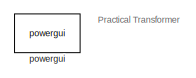
[diagram: root canvas - part 1/4, top left region]
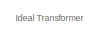
[diagram: root canvas - part 2/4, top center region]
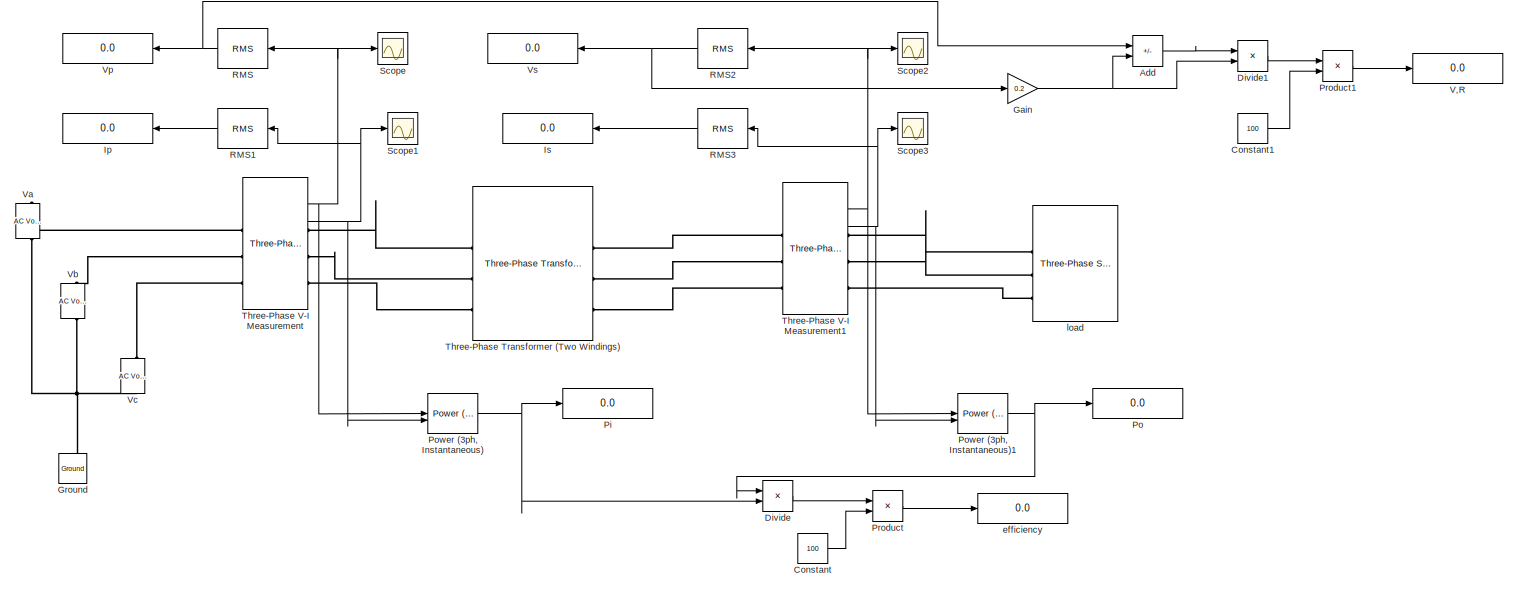
[diagram: root canvas - part 3/4, left side, full height]
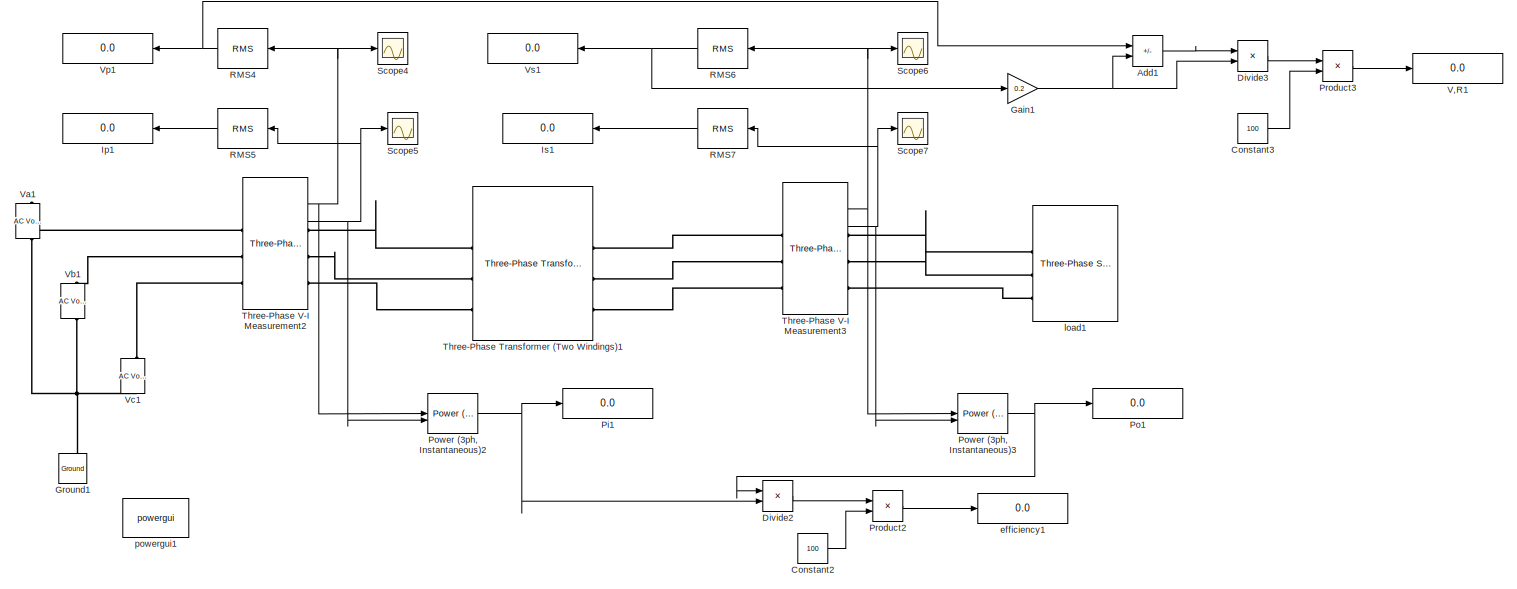
[diagram: root canvas - part 4/4, right side, full height]
MODEL slx_853a9605aea3
KIND model
CONFIG AbsTol = auto
CONFIG EnableMultiTasking = off
CONFIG FixedStep = auto
CONFIG MaxStep = 1e-4
CONFIG MinStep = auto
CONFIG RelTol = 1e-3
CONFIG SampleTimeConstraint = Unconstrained
CONFIG SolverName = ode23tb
CONFIG StartTime = 0.0
CONFIG StopTime = 0.2
BLOCK [Sum] Add
  IconShape = rectangular
  Inputs = +-
BLOCK [Sum] Add1
  IconShape = rectangular
  Inputs = +-
BLOCK [Constant] Constant
  Value = 100
BLOCK [Constant] Constant1
  Value = 100
BLOCK [Constant] Constant2
  Value = 100
BLOCK [Constant] Constant3
  Value = 100
BLOCK [Product] Divide
  Inputs = */
BLOCK [Product] Divide1
  Inputs = */
BLOCK [Product] Divide2
  Inputs = */
BLOCK [Product] Divide3
  Inputs = */
BLOCK [Gain] Gain
  Gain = 0.2
BLOCK [Gain] Gain1
  Gain = 0.2
BLOCK [Reference] Ground  REF=spsGroundLib/Ground
  NameLocation = right
  SourceBlock = spsGroundLib/Ground
  SourceType = Ground
BLOCK [Reference] Ground1  REF=spsGroundLib/Ground
  NameLocation = right
  SourceBlock = spsGroundLib/Ground
  SourceType = Ground
BLOCK [Display] Ip
  Decimation = 1
  NameLocation = top
BLOCK [Display] Ip1
  Decimation = 1
  NameLocation = top
BLOCK [Display] Is
  Decimation = 1
  NameLocation = top
BLOCK [Display] Is1
  Decimation = 1
  NameLocation = top
BLOCK [Display] Pi
  Decimation = 1
BLOCK [Display] Pi1
  Decimation = 1
BLOCK [Display] Po
  Decimation = 1
BLOCK [Display] Po1
  Decimation = 1
BLOCK [Reference] Power (3ph, Instantaneous)  REF=spsPower3phInstantaneousLib/Power
(3ph, Instantaneous)
  SourceBlock = spsPower3phInstantaneousLib/Power\n(3ph, Instantaneous)
  SourceType = Power (3ph, Instantaneous)
BLOCK [Reference] Power (3ph, Instantaneous)1  REF=spsPower3phInstantaneousLib/Power
(3ph, Instantaneous)
  SourceBlock = spsPower3phInstantaneousLib/Power\n(3ph, Instantaneous)
  SourceType = Power (3ph, Instantaneous)
BLOCK [Reference] Power (3ph, Instantaneous)2  REF=spsPower3phInstantaneousLib/Power
(3ph, Instantaneous)
  SourceBlock = spsPower3phInstantaneousLib/Power\n(3ph, Instantaneous)
  SourceType = Power (3ph, Instantaneous)
BLOCK [Reference] Power (3ph, Instantaneous)3  REF=spsPower3phInstantaneousLib/Power
(3ph, Instantaneous)
  SourceBlock = spsPower3phInstantaneousLib/Power\n(3ph, Instantaneous)
  SourceType = Power (3ph, Instantaneous)
BLOCK [Product] Product
BLOCK [Product] Product1
BLOCK [Product] Product2
BLOCK [Product] Product3
BLOCK [Reference] RMS  REF=spsRMSLib/RMS
  NameLocation = top
  SourceBlock = spsRMSLib/RMS
  SourceType = RMS
BLOCK [Reference] RMS1  REF=spsRMSLib/RMS
  NameLocation = top
  SourceBlock = spsRMSLib/RMS
  SourceType = RMS
BLOCK [Reference] RMS2  REF=spsRMSLib/RMS
  NameLocation = top
  SourceBlock = spsRMSLib/RMS
  SourceType = RMS
BLOCK [Reference] RMS3  REF=spsRMSLib/RMS
  NameLocation = top
  SourceBlock = spsRMSLib/RMS
  SourceType = RMS
BLOCK [Reference] RMS4  REF=spsRMSLib/RMS
  NameLocation = top
  SourceBlock = spsRMSLib/RMS
  SourceType = RMS
BLOCK [Reference] RMS5  REF=spsRMSLib/RMS
  NameLocation = top
  SourceBlock = spsRMSLib/RMS
  SourceType = RMS
BLOCK [Reference] RMS6  REF=spsRMSLib/RMS
  NameLocation = top
  SourceBlock = spsRMSLib/RMS
  SourceType = RMS
BLOCK [Reference] RMS7  REF=spsRMSLib/RMS
  NameLocation = top
  SourceBlock = spsRMSLib/RMS
  SourceType = RMS
BLOCK [Scope] Scope
  Floating = off
  NumInputPorts = 1
  ScopeSpecificationString = Simulink.scopes.TimeScopeBlockCfg('CurrentConfiguration', extmgr.ConfigurationSet(extmgr.Configuration('Core','General UI',true),extmgr.Configuration('Core','Source UI',true),extmgr.Configuration('Sources','WiredSimulink',true,'DataLoggingSaveFormat','Array','DataLoggingDecimation','1','DataLoggingDecimateData',true),extmgr.Configuration('Visuals','Time Domain',true,'DisplayPropertyDefaults',struc...<+824ch>
BLOCK [Scope] Scope1
  Floating = off
  NumInputPorts = 1
  ScopeSpecificationString = Simulink.scopes.TimeScopeBlockCfg('CurrentConfiguration', extmgr.ConfigurationSet(extmgr.Configuration('Core','General UI',true),extmgr.Configuration('Core','Source UI',true),extmgr.Configuration('Sources','WiredSimulink',true,'DataLoggingVariableName','ScopeData1','DataLoggingSaveFormat','Array','DataLoggingDecimation','1','DataLoggingDecimateData',true),extmgr.Configuration('Visuals','Time Domai...<+863ch>
BLOCK [Scope] Scope2
  Floating = off
  NumInputPorts = 1
  ScopeSpecificationString = Simulink.scopes.TimeScopeBlockCfg('CurrentConfiguration', extmgr.ConfigurationSet(extmgr.Configuration('Core','General UI',true),extmgr.Configuration('Core','Source UI',true),extmgr.Configuration('Sources','WiredSimulink',true,'DataLoggingVariableName','ScopeData2','DataLoggingSaveFormat','Array','DataLoggingDecimation','1','DataLoggingDecimateData',true),extmgr.Configuration('Visuals','Time Domai...<+863ch>
BLOCK [Scope] Scope3
  Floating = off
  NumInputPorts = 1
  ScopeSpecificationString = Simulink.scopes.TimeScopeBlockCfg('CurrentConfiguration', extmgr.ConfigurationSet(extmgr.Configuration('Core','General UI',true),extmgr.Configuration('Core','Source UI',true),extmgr.Configuration('Sources','WiredSimulink',true,'DataLoggingVariableName','ScopeData3','DataLoggingSaveFormat','Array','DataLoggingDecimation','1','DataLoggingDecimateData',true),extmgr.Configuration('Visuals','Time Domai...<+863ch>
BLOCK [Scope] Scope4
  Floating = off
  NumInputPorts = 1
  ScopeSpecificationString = Simulink.scopes.TimeScopeBlockCfg('CurrentConfiguration', extmgr.ConfigurationSet(extmgr.Configuration('Core','General UI',true),extmgr.Configuration('Core','Source UI',true),extmgr.Configuration('Sources','WiredSimulink',true,'DataLoggingSaveFormat','Array','DataLoggingDecimation','1','DataLoggingDecimateData',true,'DataLoggingVariableName','ScopeData4'),extmgr.Configuration('Visuals','Time Domai...<+863ch>
BLOCK [Scope] Scope5
  Floating = off
  NumInputPorts = 1
  ScopeSpecificationString = Simulink.scopes.TimeScopeBlockCfg('CurrentConfiguration', extmgr.ConfigurationSet(extmgr.Configuration('Core','General UI',true),extmgr.Configuration('Core','Source UI',true),extmgr.Configuration('Sources','WiredSimulink',true,'DataLoggingVariableName','ScopeData5','DataLoggingSaveFormat','Array','DataLoggingDecimation','1','DataLoggingDecimateData',true),extmgr.Configuration('Visuals','Time Domai...<+863ch>
BLOCK [Scope] Scope6
  Floating = off
  NumInputPorts = 1
  ScopeSpecificationString = Simulink.scopes.TimeScopeBlockCfg('CurrentConfiguration', extmgr.ConfigurationSet(extmgr.Configuration('Core','General UI',true),extmgr.Configuration('Core','Source UI',true),extmgr.Configuration('Sources','WiredSimulink',true,'DataLoggingVariableName','ScopeData6','DataLoggingSaveFormat','Array','DataLoggingDecimation','1','DataLoggingDecimateData',true),extmgr.Configuration('Visuals','Time Domai...<+863ch>
BLOCK [Scope] Scope7
  Floating = off
  NumInputPorts = 1
  ScopeSpecificationString = Simulink.scopes.TimeScopeBlockCfg('CurrentConfiguration', extmgr.ConfigurationSet(extmgr.Configuration('Core','General UI',true),extmgr.Configuration('Core','Source UI',true),extmgr.Configuration('Sources','WiredSimulink',true,'DataLoggingVariableName','ScopeData7','DataLoggingSaveFormat','Array','DataLoggingDecimation','1','DataLoggingDecimateData',true),extmgr.Configuration('Visuals','Time Domai...<+863ch>
BLOCK [Reference] Three-Phase Transformer (Two Windings)  REF=spsThreePhaseTransformerTwoWindingsLib/Three-Phase
Transformer
(Two Windings)
  SourceBlock = spsThreePhaseTransformerTwoWindingsLib/Three-Phase\nTransformer\n(Two Windings)
  SourceType = Three-Phase Transformer (Two Windings)
BLOCK [Reference] Three-Phase Transformer (Two Windings)1  REF=spsThreePhaseTransformerTwoWindingsLib/Three-Phase
Transformer
(Two Windings)
  SourceBlock = spsThreePhaseTransformerTwoWindingsLib/Three-Phase\nTransformer\n(Two Windings)
  SourceType = Three-Phase Transformer (Two Windings)
BLOCK [Reference] Three-Phase V-I Measurement  REF=spsThreePhaseVIMeasurementLib/Three-Phase
V-I Measurement
  SourceBlock = spsThreePhaseVIMeasurementLib/Three-Phase\nV-I Measurement
  SourceType = Three-Phase VI Measurement
BLOCK [Reference] Three-Phase V-I Measurement1  REF=spsThreePhaseVIMeasurementLib/Three-Phase
V-I Measurement
  SourceBlock = spsThreePhaseVIMeasurementLib/Three-Phase\nV-I Measurement
  SourceType = Three-Phase VI Measurement
BLOCK [Reference] Three-Phase V-I Measurement2  REF=spsThreePhaseVIMeasurementLib/Three-Phase
V-I Measurement
  SourceBlock = spsThreePhaseVIMeasurementLib/Three-Phase\nV-I Measurement
  SourceType = Three-Phase VI Measurement
BLOCK [Reference] Three-Phase V-I Measurement3  REF=spsThreePhaseVIMeasurementLib/Three-Phase
V-I Measurement
  SourceBlock = spsThreePhaseVIMeasurementLib/Three-Phase\nV-I Measurement
  SourceType = Three-Phase VI Measurement
BLOCK [Display] V,R
  Decimation = 1
BLOCK [Display] V,R1
  Decimation = 1
BLOCK [Reference] Va  REF=spsACVoltageSourceLib/AC Voltage Source
  NameLocation = right
  SourceBlock = spsACVoltageSourceLib/AC Voltage Source
  SourceType = AC Voltage Source
BLOCK [Reference] Va1  REF=spsACVoltageSourceLib/AC Voltage Source
  NameLocation = right
  SourceBlock = spsACVoltageSourceLib/AC Voltage Source
  SourceType = AC Voltage Source
BLOCK [Reference] Vb  REF=spsACVoltageSourceLib/AC Voltage Source
  NameLocation = right
  SourceBlock = spsACVoltageSourceLib/AC Voltage Source
  SourceType = AC Voltage Source
BLOCK [Reference] Vb1  REF=spsACVoltageSourceLib/AC Voltage Source
  NameLocation = right
  SourceBlock = spsACVoltageSourceLib/AC Voltage Source
  SourceType = AC Voltage Source
BLOCK [Reference] Vc  REF=spsACVoltageSourceLib/AC Voltage Source
  NameLocation = right
  SourceBlock = spsACVoltageSourceLib/AC Voltage Source
  SourceType = AC Voltage Source
BLOCK [Reference] Vc1  REF=spsACVoltageSourceLib/AC Voltage Source
  NameLocation = right
  SourceBlock = spsACVoltageSourceLib/AC Voltage Source
  SourceType = AC Voltage Source
BLOCK [Display] Vp
  Decimation = 1
  NameLocation = top
BLOCK [Display] Vp1
  Decimation = 1
  NameLocation = top
BLOCK [Display] Vs
  Decimation = 1
  NameLocation = top
BLOCK [Display] Vs1
  Decimation = 1
  NameLocation = top
BLOCK [Display] efficiency
  Decimation = 1
BLOCK [Display] efficiency1
  Decimation = 1
BLOCK [Reference] load  REF=spsThreePhaseSeriesRLCLoadLib/Three-Phase
Series RLC Load
  AttributesFormatString = \n
  NameLocation = top
  SourceBlock = spsThreePhaseSeriesRLCLoadLib/Three-Phase\nSeries RLC Load
  SourceType = Three-Phase Series RLC Load
BLOCK [Reference] load1  REF=spsThreePhaseSeriesRLCLoadLib/Three-Phase
Series RLC Load
  AttributesFormatString = \n
  NameLocation = top
  SourceBlock = spsThreePhaseSeriesRLCLoadLib/Three-Phase\nSeries RLC Load
  SourceType = Three-Phase Series RLC Load
BLOCK [Reference] powergui  REF=spspowerguiLib/powergui
  Priority = 1
  SourceBlock = spspowerguiLib/powergui
  SourceType = PSB option menu block
BLOCK [Reference] powergui1  REF=spspowerguiLib/powergui
  Priority = 1
  SourceBlock = spspowerguiLib/powergui
  SourceType = PSB option menu block
ANNOTATION (root): Ideal Transformer
ANNOTATION (root): Practical Transformer
LINE Add1:1 -> Divide3:1
LINE Add:1 -> Divide1:1
LINE Constant1:1 -> Product1:2
LINE Constant2:1 -> Product2:2
LINE Constant3:1 -> Product3:2
LINE Constant:1 -> Product:2
LINE Divide1:1 -> Product1:1
LINE Divide2:1 -> Product2:1
LINE Divide3:1 -> Product3:1
LINE Divide:1 -> Product:1
NET Gain1:1 -> Add1:2, Divide3:2
NET Gain:1 -> Add:2, Divide1:2
NET Power (3ph, Instantaneous)1:1 -> Divide:1, Po:1
NET Power (3ph, Instantaneous)2:1 -> Divide2:2, Pi1:1
NET Power (3ph, Instantaneous)3:1 -> Divide2:1, Po1:1
NET Power (3ph, Instantaneous):1 -> Divide:2, Pi:1
LINE Product1:1 -> V,R:1
LINE Product2:1 -> efficiency1:1
LINE Product3:1 -> V,R1:1
LINE Product:1 -> efficiency:1
LINE RMS1:1 -> Ip:1
NET RMS2:1 -> Gain:1, Vs:1
LINE RMS3:1 -> Is:1
NET RMS4:1 -> Add1:1, Vp1:1
LINE RMS5:1 -> Ip1:1
NET RMS6:1 -> Gain1:1, Vs1:1
LINE RMS7:1 -> Is1:1
NET RMS:1 -> Add:1, Vp:1
NET Three-Phase V-I Measurement1:1 -> Power (3ph, Instantaneous)1:1, RMS2:1, Scope2:1
NET Three-Phase V-I Measurement1:2 -> Power (3ph, Instantaneous)1:2, RMS3:1, Scope3:1
NET Three-Phase V-I Measurement2:1 -> Power (3ph, Instantaneous)2:1, RMS4:1, Scope4:1
NET Three-Phase V-I Measurement2:2 -> Power (3ph, Instantaneous)2:2, RMS5:1, Scope5:1
NET Three-Phase V-I Measurement3:1 -> Power (3ph, Instantaneous)3:1, RMS6:1, Scope6:1
NET Three-Phase V-I Measurement3:2 -> Power (3ph, Instantaneous)3:2, RMS7:1, Scope7:1
NET Three-Phase V-I Measurement:1 -> Power (3ph, Instantaneous):1, RMS:1, Scope:1
NET Three-Phase V-I Measurement:2 -> Power (3ph, Instantaneous):2, RMS1:1, Scope1:1
PNET net1: Ground1:LConn1 -- Va1:LConn1 -- Vb1:LConn1 -- Vc1:LConn1
PNET net2: Ground:LConn1 -- Va:LConn1 -- Vb:LConn1 -- Vc:LConn1
PLINE Three-Phase Transformer (Two Windings)1:LConn1 -- Three-Phase V-I Measurement2:RConn1
PLINE Three-Phase Transformer (Two Windings)1:LConn2 -- Three-Phase V-I Measurement2:RConn2
PLINE Three-Phase Transformer (Two Windings)1:LConn3 -- Three-Phase V-I Measurement2:RConn3
PLINE Three-Phase Transformer (Two Windings)1:RConn1 -- Three-Phase V-I Measurement3:LConn1
PLINE Three-Phase Transformer (Two Windings)1:RConn2 -- Three-Phase V-I Measurement3:LConn2
PLINE Three-Phase Transformer (Two Windings)1:RConn3 -- Three-Phase V-I Measurement3:LConn3
PLINE Three-Phase Transformer (Two Windings):LConn1 -- Three-Phase V-I Measurement:RConn1
PLINE Three-Phase Transformer (Two Windings):LConn2 -- Three-Phase V-I Measurement:RConn2
PLINE Three-Phase Transformer (Two Windings):LConn3 -- Three-Phase V-I Measurement:RConn3
PLINE Three-Phase Transformer (Two Windings):RConn1 -- Three-Phase V-I Measurement1:LConn1
PLINE Three-Phase Transformer (Two Windings):RConn2 -- Three-Phase V-I Measurement1:LConn2
PLINE Three-Phase Transformer (Two Windings):RConn3 -- Three-Phase V-I Measurement1:LConn3
PLINE Three-Phase V-I Measurement1:RConn1 -- load:LConn1
PLINE Three-Phase V-I Measurement1:RConn2 -- load:LConn2
PLINE Three-Phase V-I Measurement1:RConn3 -- load:LConn3
PLINE Three-Phase V-I Measurement2:LConn1 -- Va1:RConn1
PLINE Three-Phase V-I Measurement2:LConn2 -- Vb1:RConn1
PLINE Three-Phase V-I Measurement2:LConn3 -- Vc1:RConn1
PLINE Three-Phase V-I Measurement3:RConn1 -- load1:LConn1
PLINE Three-Phase V-I Measurement3:RConn2 -- load1:LConn2
PLINE Three-Phase V-I Measurement3:RConn3 -- load1:LConn3
PLINE Three-Phase V-I Measurement:LConn1 -- Va:RConn1
PLINE Three-Phase V-I Measurement:LConn2 -- Vb:RConn1
PLINE Three-Phase V-I Measurement:LConn3 -- Vc:RConn1
note: NET lines group one-source signal fan-out (src -> all destinations, sorted); 1:1 wires keep LINE; PNET lines group multi-terminal physical nets as a canonical sorted terminal list (undirected conserving connections); 2-terminal nets keep the pairwise PLINE form
